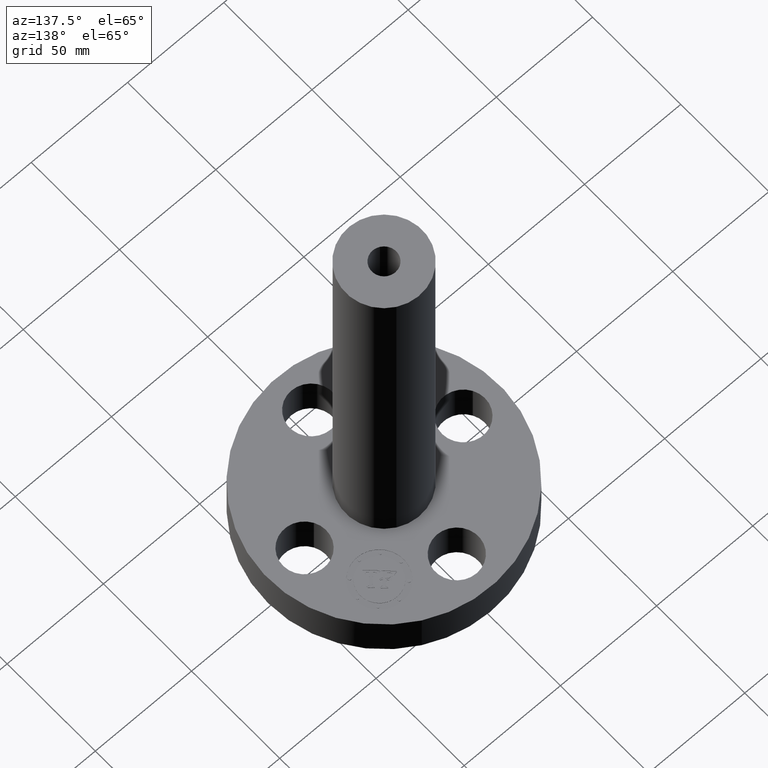
[diagram: clean part render]
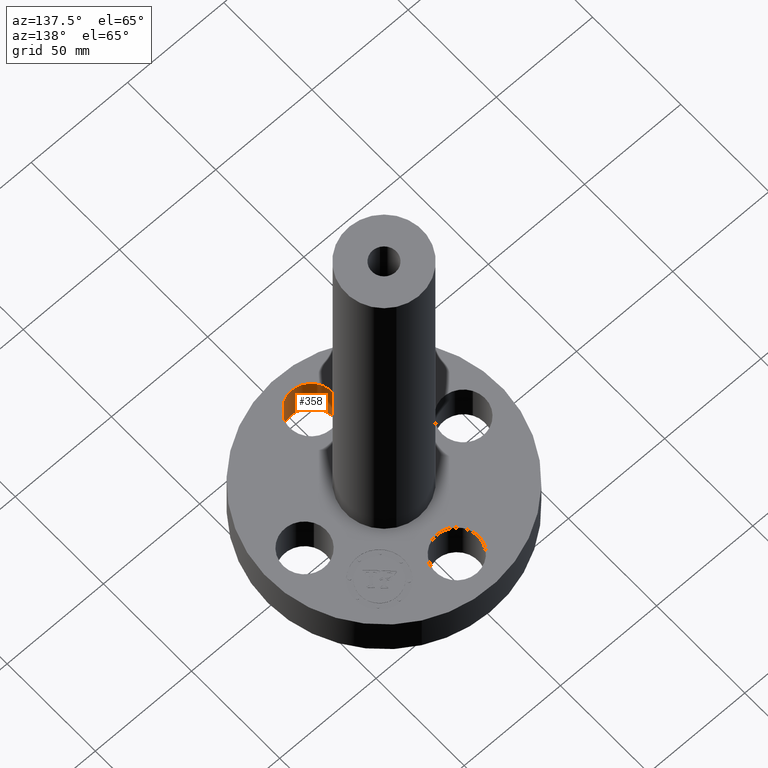
[diagram: same view with one face highlighted and labeled with its STEP entity id]
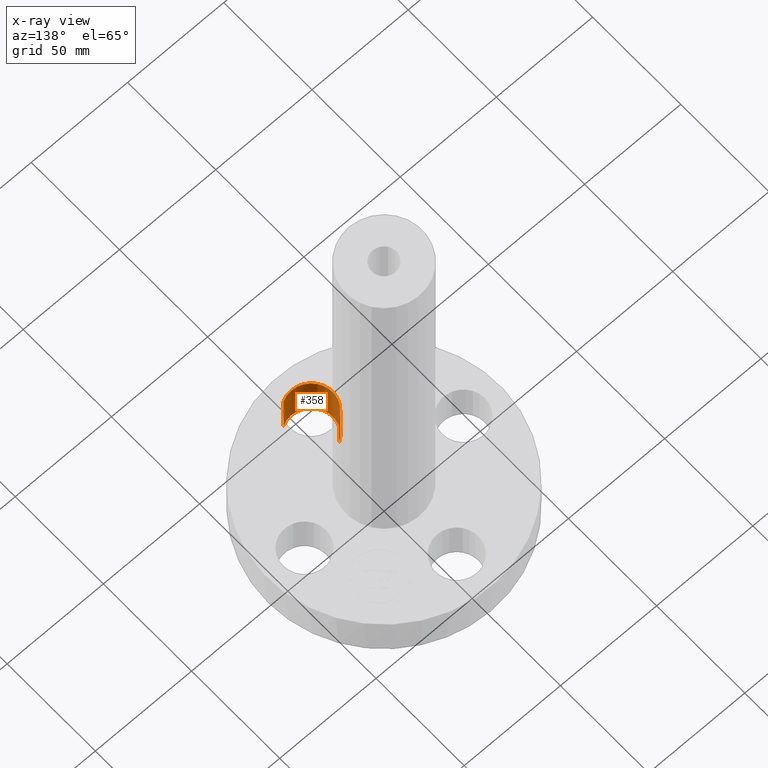
[diagram: x-ray of the same camera — body ghosted, the highlighted face saturated]
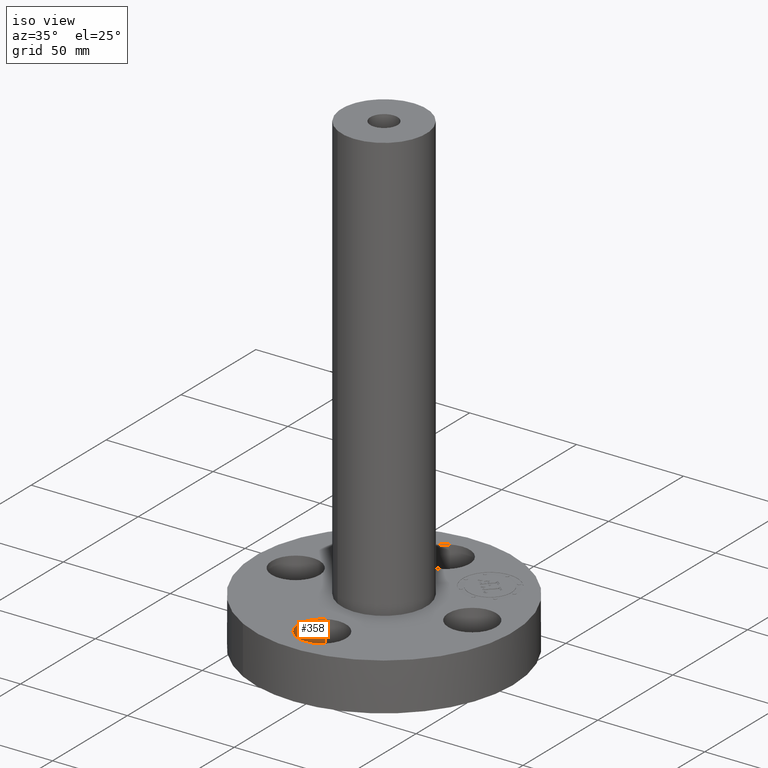
[diagram: same view with one face highlighted and labeled with its STEP entity id]
A machine part, auxiliary view. The second image highlights one B-rep face of the part: STEP entity #358.
The next image is the same camera in x-ray: the body ghosted, the highlighted face saturated — about 15% of this face is hidden behind the body in this view.
A second angle (iso view) of the same face is appended — the face is thin or edge-on in the first view.
In plain terms, the highlighted cylindrical surface (edge-blend (fillet) strip) has radius 11.176 mm, axis along (-0, 0, 1).
Its self-contained STEP definition (entity closure, byte-faithful):
#148=AXIS2_PLACEMENT_3D('Circle Axis2P3D',#146,#147,$) ;
#331=AXIS2_PLACEMENT_3D('Cylinder Axis2P3D',#328,#329,#330) ;
#349=AXIS2_PLACEMENT_3D('Circle Axis2P3D',#347,#348,$) ;
#141=CARTESIAN_POINT('Vertex',(-0.210947236987,-1.23886367277,0.880000000004)) ;
#143=CARTESIAN_POINT('Vertex',(0.210947236987,-2.01113632724,0.880000000004)) ;
#146=CARTESIAN_POINT('Axis2P3D Location',(2.79741234551E-016,-1.62500000001,0.880000000004)) ;
#328=CARTESIAN_POINT('Axis2P3D Location',(9.95025524311E-017,-1.62500000001,0.00393700787402)) ;
#333=CARTESIAN_POINT('Line Origine',(-0.210947236987,-1.23886367277,0.440000000002)) ;
#337=CARTESIAN_POINT('Vertex',(-0.210947236987,-1.23886367277,2.2401153548E-016)) ;
#340=CARTESIAN_POINT('Line Origine',(0.210947236987,-2.01113632724,0.440000000002)) ;
#344=CARTESIAN_POINT('Vertex',(0.210947236987,-2.01113632724,2.2401153548E-016)) ;
#347=CARTESIAN_POINT('Axis2P3D Location',(9.95025524311E-017,-1.62500000001,0.)) ;
#147=DIRECTION('Axis2P3D Direction',(0.,0.,-0.0393700787402)) ;
#329=DIRECTION('Axis2P3D Direction',(-0.,0.,0.0393700787402)) ;
#330=DIRECTION('Axis2P3D XDirection',(0.0188750212049,-0.0345504945626,0.)) ;
#334=DIRECTION('Vector Direction',(0.,0.,0.0393700787402)) ;
#341=DIRECTION('Vector Direction',(0.,0.,0.0393700787402)) ;
#348=DIRECTION('Axis2P3D Direction',(-0.,0.,0.0393700787402)) ;
#335=VECTOR('Line Direction',#334,0.0393700787402) ;
#342=VECTOR('Line Direction',#341,0.0393700787402) ;
#353=ORIENTED_EDGE('',*,*,#339,.F.) ;
#354=ORIENTED_EDGE('',*,*,#150,.F.) ;
#355=ORIENTED_EDGE('',*,*,#346,.T.) ;
#356=ORIENTED_EDGE('',*,*,#351,.T.) ;
#358=ADVANCED_FACE('PartBody',(#357),#332,.F.) ;
#149=CIRCLE('generated circle',#148,0.440000000002) ;
#350=CIRCLE('generated circle',#349,0.440000000002) ;
#332=CYLINDRICAL_SURFACE('generated cylinder',#331,0.440000000002) ;
#150=EDGE_CURVE('',#144,#142,#149,.T.) ;
#339=EDGE_CURVE('',#142,#338,#336,.F.) ;
#346=EDGE_CURVE('',#144,#345,#343,.F.) ;
#351=EDGE_CURVE('',#345,#338,#350,.F.) ;
#352=EDGE_LOOP('',(#353,#354,#355,#356)) ;
#357=FACE_OUTER_BOUND('',#352,.T.) ;
#336=LINE('Line',#333,#335) ;
#343=LINE('Line',#340,#342) ;
#142=VERTEX_POINT('',#141) ;
#144=VERTEX_POINT('',#143) ;
#338=VERTEX_POINT('',#337) ;
#345=VERTEX_POINT('',#344) ;